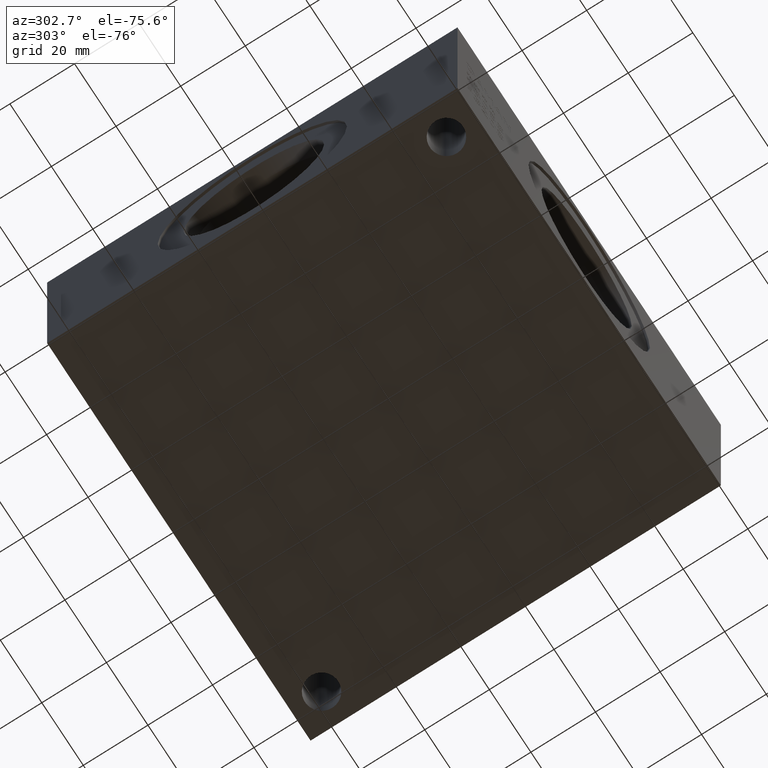
[diagram: clean part render]
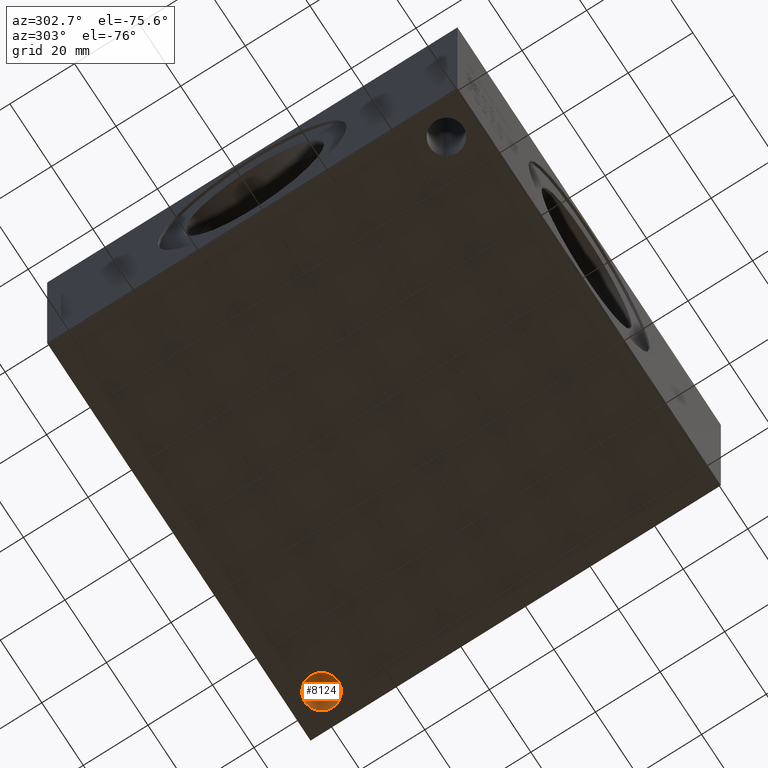
[diagram: same view with one face highlighted and labeled with its STEP entity id]
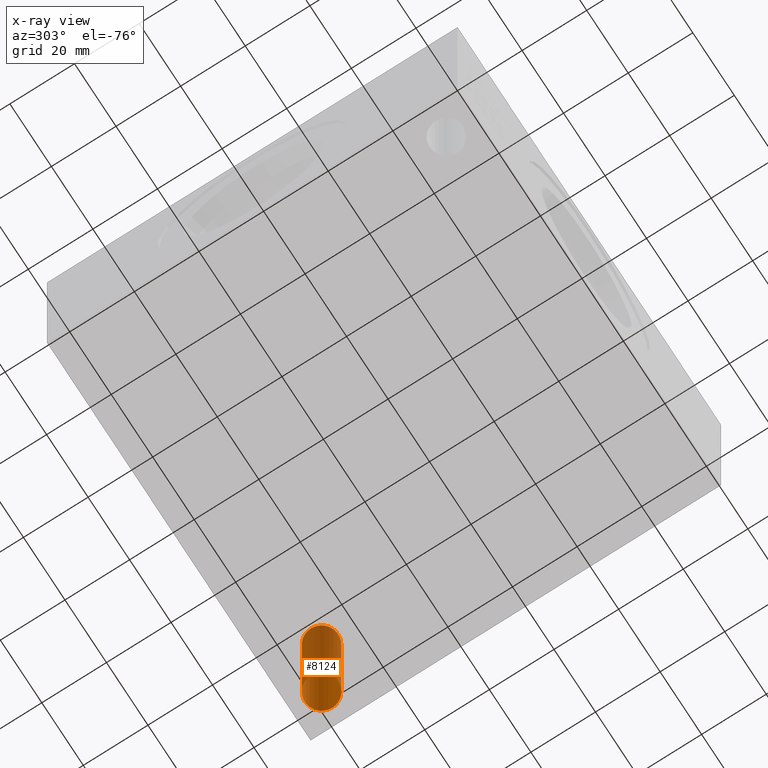
[diagram: x-ray of the same camera — body ghosted, the highlighted face saturated]
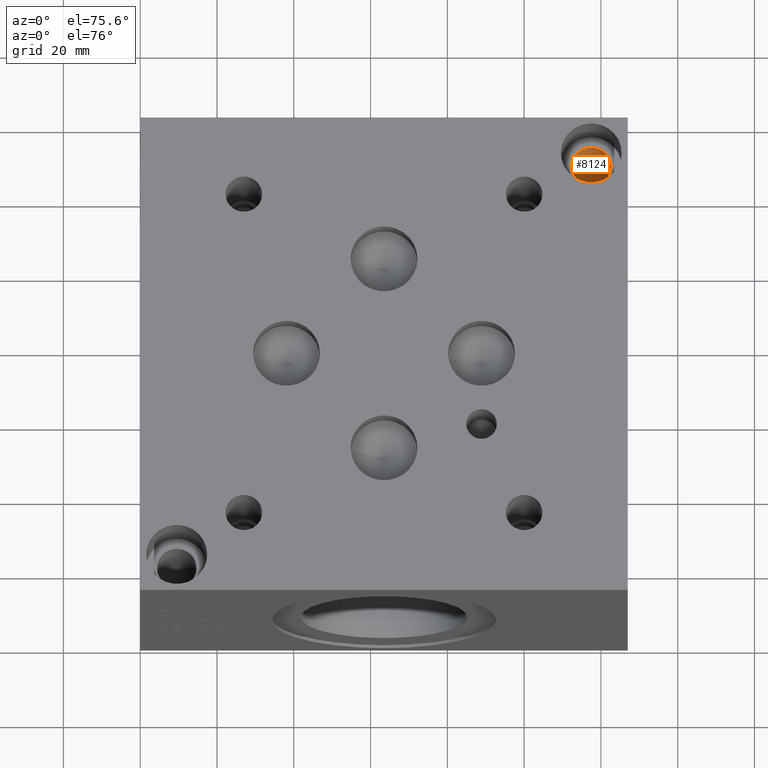
[diagram: same view with one face highlighted and labeled with its STEP entity id]
A machine part, auxiliary view. The second image highlights one B-rep face of the part: STEP entity #8124.
The next image is the same camera in x-ray: the body ghosted, the highlighted face saturated — about 37% of this face is hidden behind the body in this view.
A second angle (auxiliary view) of the same face is appended — the face is thin or edge-on in the first view.
In plain terms, the highlighted cylindrical surface (bore or boss wall) has radius 5.1562 mm, axis along (0, 0, 1).
Its self-contained STEP definition (entity closure, byte-faithful):
#42=CYLINDRICAL_SURFACE('',#8505,5.1562);
#159=CIRCLE('',#8501,5.1562);
#162=CIRCLE('',#8506,5.1562);
#1056=FACE_OUTER_BOUND('',#1508,.T.);
#1508=EDGE_LOOP('',(#7006,#7007,#7008,#7009));
#2260=LINE('',#14044,#2988);
#2988=VECTOR('',#9957,5.1562);
#3719=VERTEX_POINT('',#14034);
#3722=VERTEX_POINT('',#14043);
#4834=EDGE_CURVE('',#3719,#3719,#159,.T.);
#4838=EDGE_CURVE('',#3719,#3722,#2260,.T.);
#4839=EDGE_CURVE('',#3722,#3722,#162,.T.);
#7006=ORIENTED_EDGE('',*,*,#4834,.T.);
#7007=ORIENTED_EDGE('',*,*,#4838,.T.);
#7008=ORIENTED_EDGE('',*,*,#4839,.F.);
#7009=ORIENTED_EDGE('',*,*,#4838,.F.);
#8124=ADVANCED_FACE('',(#1056),#42,.F.);
#8501=AXIS2_PLACEMENT_3D('',#14035,#9946,#9947);
#8505=AXIS2_PLACEMENT_3D('',#14042,#9955,#9956);
#8506=AXIS2_PLACEMENT_3D('',#14045,#9958,#9959);
#9946=DIRECTION('center_axis',(0.,0.,1.));
#9947=DIRECTION('ref_axis',(1.,0.,0.));
#9955=DIRECTION('center_axis',(0.,0.,1.));
#9956=DIRECTION('ref_axis',(1.,0.,0.));
#9957=DIRECTION('',(0.,0.,-1.));
#9958=DIRECTION('center_axis',(0.,0.,1.));
#9959=DIRECTION('ref_axis',(1.,0.,0.));
#14034=CARTESIAN_POINT('',(112.3188,117.475,49.276));
#14035=CARTESIAN_POINT('Origin',(117.475,117.475,49.276));
#14042=CARTESIAN_POINT('Origin',(117.475,117.475,-127.));
#14043=CARTESIAN_POINT('',(112.3188,117.475,0.));
#14044=CARTESIAN_POINT('',(112.3188,117.475,-127.));
#14045=CARTESIAN_POINT('Origin',(117.475,117.475,0.));